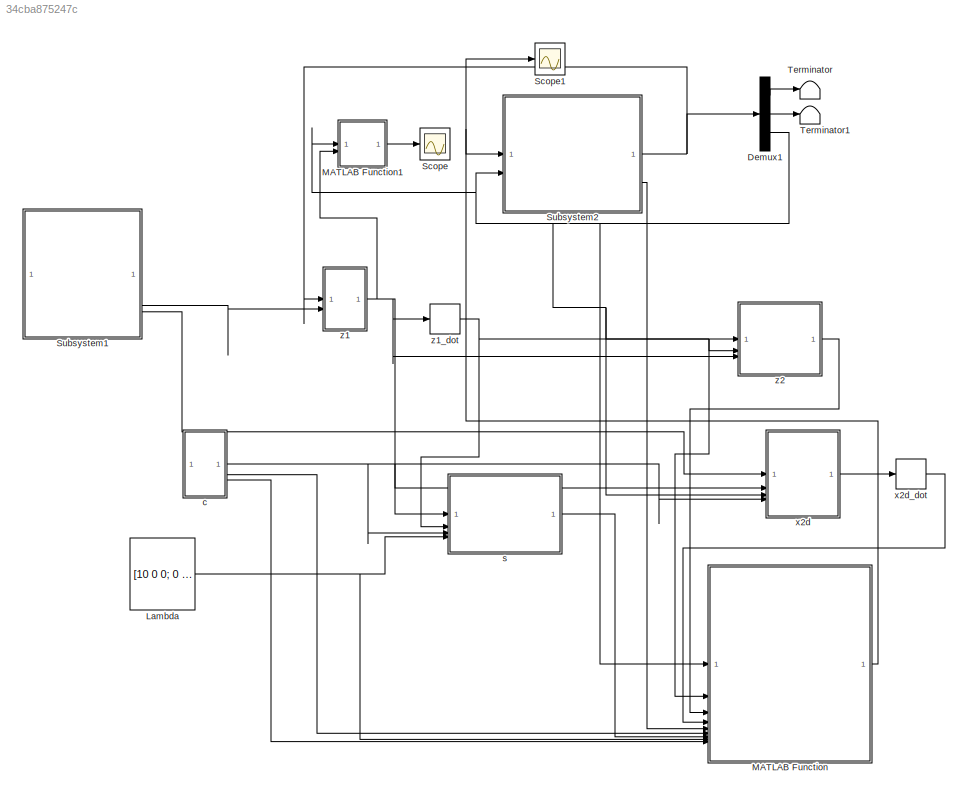
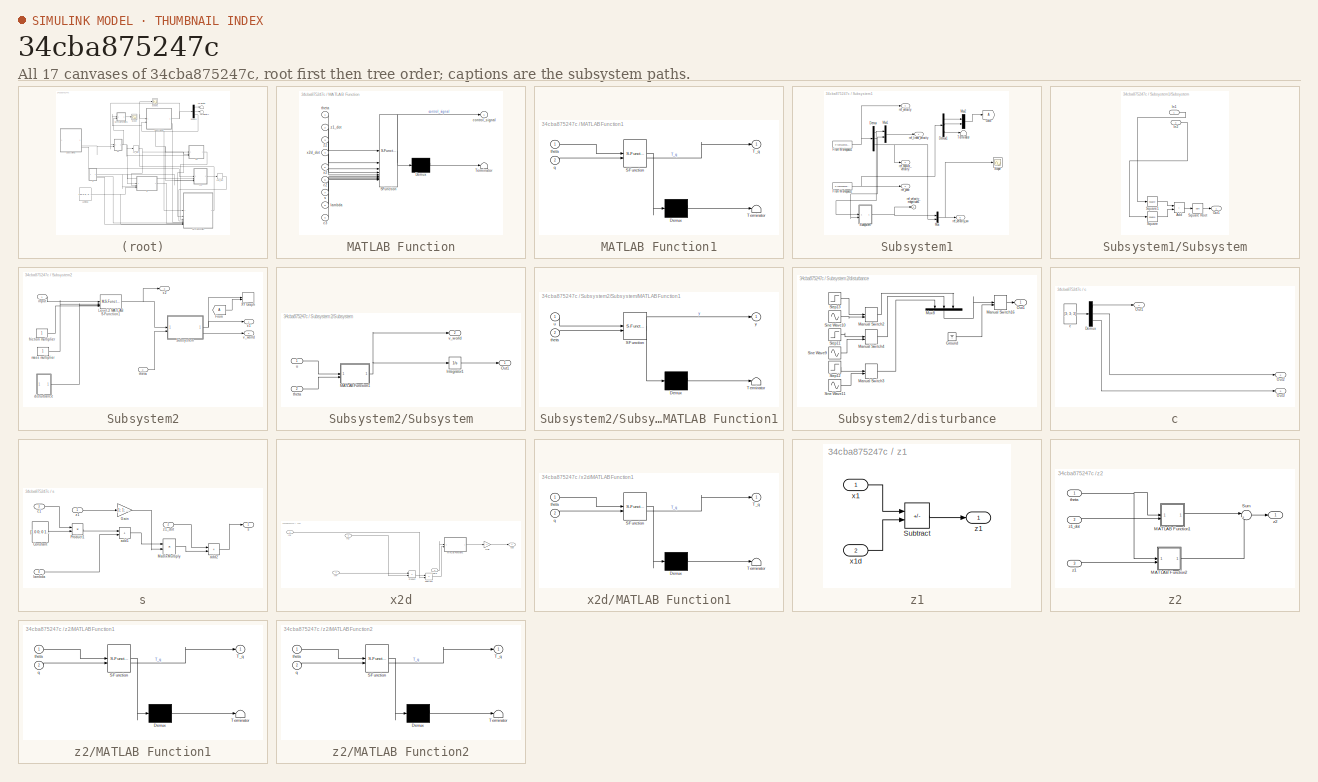
[diagram: thumbnail index - all 17 canvases of the model, root first then tree order]
MODEL slx_34cba875247c
KIND model
CONFIG AbsTol = auto
CONFIG EnableMultiTasking = off
CONFIG FixedStep = auto
CONFIG MaxStep = auto
CONFIG MinStep = auto
CONFIG RelTol = 1e-5
CONFIG SampleTimeConstraint = Unconstrained
CONFIG SolverName = VariableStepAuto
CONFIG StartTime = 0.0
CONFIG StopTime = 100.0
BLOCK [Demux] Demux1
  Outputs = 3
BLOCK [Constant] Lambda
  Value = [10 0 0; 0 20 0 ; 0 0 15]
  VectorParams1D = off
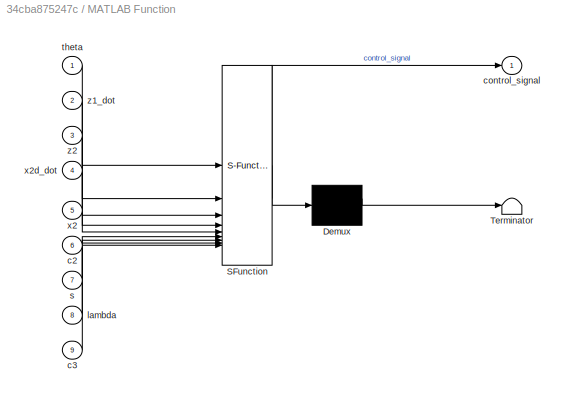
BLOCK [SubSystem] MATLAB Function
  ErrorFcn = Stateflow.Translate.translate
  LibrarySourceBlock = simulink/User-Defined\nFunctions/MATLAB Function
  PermitHierarchicalResolution = ExplicitOnly
  SFBlockType = MATLAB Function
  TreatAsAtomicUnit = on
BLOCK [Demux] MATLAB Function/ Demux 
  Outputs = 1
BLOCK [S-Function] MATLAB Function/ SFunction 
  EnableBusSupport = on
  FunctionName = sf_sfun
  PortCounts = [9 2]
  SFcnIsStateOwnerBlock = off
  SFunctionDeploymentMode = off
  Tag = Stateflow S-Function 6
BLOCK [Terminator] MATLAB Function/ Terminator 
BLOCK [Inport] MATLAB Function/c2
  Port = 6
BLOCK [Inport] MATLAB Function/c3
  Port = 9
BLOCK [Outport] MATLAB Function/control_signal
BLOCK [Inport] MATLAB Function/lambda
  Port = 8
BLOCK [Inport] MATLAB Function/s
  Port = 7
BLOCK [Inport] MATLAB Function/theta
BLOCK [Inport] MATLAB Function/x2
  Port = 5
BLOCK [Inport] MATLAB Function/x2d_dot
  Port = 4
BLOCK [Inport] MATLAB Function/z1_dot
  Port = 2
BLOCK [Inport] MATLAB Function/z2
  Port = 3
BLOCK [SubSystem] MATLAB Function1
  ErrorFcn = Stateflow.Translate.translate
  PermitHierarchicalResolution = ExplicitOnly
  SFBlockType = MATLAB Function
  TreatAsAtomicUnit = on
BLOCK [Demux] MATLAB Function1/ Demux 
  Outputs = 1
BLOCK [S-Function] MATLAB Function1/ SFunction 
  EnableBusSupport = on
  FunctionName = sf_sfun
  PortCounts = [2 2]
  SFcnIsStateOwnerBlock = off
  SFunctionDeploymentMode = off
  Tag = Stateflow S-Function 1
BLOCK [Terminator] MATLAB Function1/ Terminator 
BLOCK [Outport] MATLAB Function1/T_q
BLOCK [Inport] MATLAB Function1/q
  Port = 2
BLOCK [Inport] MATLAB Function1/theta
BLOCK [Scope] Scope
  Floating = off
  NumInputPorts = 1
  ScopeSpecificationString = Simulink.scopes.TimeScopeBlockCfg('CurrentConfiguration', extmgr.ConfigurationSet(extmgr.Configuration('Core','General UI',true),extmgr.Configuration('Core','Source UI',true),extmgr.Configuration('Sources','WiredSimulink',true,'DataLoggingVariableName','ScopeData1'),extmgr.Configuration('Visuals','Time Domain',true,'SerializedDisplays',{struct('MinYLimReal','-0.00024','MaxYLimReal','0.00018','YLab...<+1489ch>
BLOCK [Scope] Scope1
  Floating = off
  NumInputPorts = 1
  ScopeSpecificationString = Simulink.scopes.TimeScopeBlockCfg('CurrentConfiguration', extmgr.ConfigurationSet(extmgr.Configuration('Core','General UI',true),extmgr.Configuration('Core','Source UI',true),extmgr.Configuration('Sources','WiredSimulink',true,'DataLoggingVariableName','ScopeData2'),extmgr.Configuration('Visuals','Time Domain',true,'SerializedDisplays',{struct('MinYLimReal','-4.67014','MaxYLimReal','3.31021','YLab...<+1506ch>
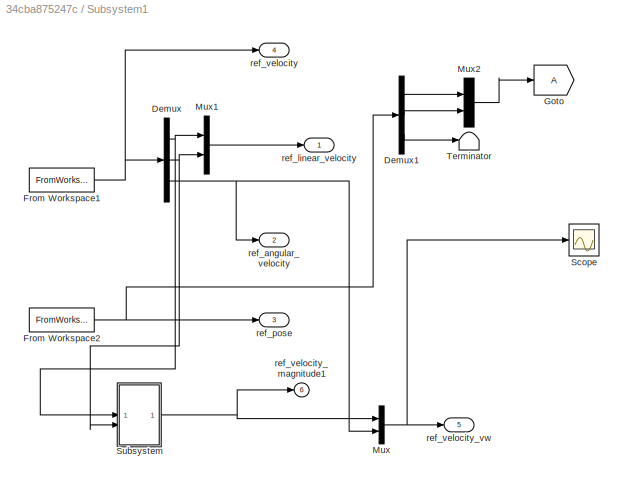
BLOCK [SubSystem] Subsystem1
BLOCK [Demux] Subsystem1/Demux
  Outputs = 3
BLOCK [Demux] Subsystem1/Demux1
  Outputs = 3
BLOCK [FromWorkspace] Subsystem1/From Workspace1
  OutputAfterFinalValue = Setting to zero
  VariableName = sim_velocity
BLOCK [FromWorkspace] Subsystem1/From Workspace2
  OutputAfterFinalValue = Setting to zero
  VariableName = sim_pose
BLOCK [Goto] Subsystem1/Goto
  TagVisibility = global
BLOCK [Mux] Subsystem1/Mux
  DisplayOption = bar
  Inputs = 2
BLOCK [Mux] Subsystem1/Mux1
  DisplayOption = bar
  Inputs = 2
BLOCK [Mux] Subsystem1/Mux2
  DisplayOption = bar
  Inputs = 2
BLOCK [Scope] Subsystem1/Scope
  Floating = off
  NumInputPorts = 1
  ScopeSpecificationString = Simulink.scopes.TimeScopeBlockCfg('CurrentConfiguration', extmgr.ConfigurationSet(extmgr.Configuration('Core','General UI',true),extmgr.Configuration('Core','Source UI',true),extmgr.Configuration('Sources','WiredSimulink',true,'DataLoggingVariableName','ScopeData3'),extmgr.Configuration('Visuals','Time Domain',true,'SerializedDisplays',{struct('MinYLimReal','-1.32526','MaxYLimReal','1.32527','YLab...<+1429ch>
BLOCK [SubSystem] Subsystem1/Subsystem
BLOCK [Sum] Subsystem1/Subsystem/Add
  IconShape = rectangular
BLOCK [Inport] Subsystem1/Subsystem/In1
BLOCK [Inport] Subsystem1/Subsystem/In2
  Port = 2
BLOCK [Outport] Subsystem1/Subsystem/Out1
BLOCK [Math] Subsystem1/Subsystem/Square
  Operator = square
BLOCK [Sqrt] Subsystem1/Subsystem/Square Root
BLOCK [Math] Subsystem1/Subsystem/Square1
  Operator = square
BLOCK [Terminator] Subsystem1/Terminator
BLOCK [Outport] Subsystem1/ref_angular_velocity
  Port = 2
BLOCK [Outport] Subsystem1/ref_linear_velocity
BLOCK [Outport] Subsystem1/ref_pose
  Port = 3
BLOCK [Outport] Subsystem1/ref_velocity
  Port = 4
BLOCK [Outport] Subsystem1/ref_velocity_magnitude1
  Port = 6
BLOCK [Outport] Subsystem1/ref_velocity_vw
  Port = 5
BLOCK [SubSystem] Subsystem2
BLOCK [From] Subsystem2/From
  TagVisibility = global
BLOCK [M-S-Function] Subsystem2/Level-2 MATLAB S-Function1
  FunctionName = model_1_c
BLOCK [SubSystem] Subsystem2/Subsystem
BLOCK [Integrator] Subsystem2/Subsystem/Integrator1
  InitialCondition = [0;0;0]
BLOCK [SubSystem] Subsystem2/Subsystem/MATLAB Function1
  ErrorFcn = Stateflow.Translate.translate
  LibrarySourceBlock = simulink/User-Defined\nFunctions/MATLAB Function
  PermitHierarchicalResolution = ExplicitOnly
  SFBlockType = MATLAB Function
  TreatAsAtomicUnit = on
BLOCK [Demux] Subsystem2/Subsystem/MATLAB Function1/ Demux 
  Outputs = 1
BLOCK [S-Function] Subsystem2/Subsystem/MATLAB Function1/ SFunction 
  EnableBusSupport = on
  FunctionName = sf_sfun
  PortCounts = [2 2]
  SFcnIsStateOwnerBlock = off
  SFunctionDeploymentMode = off
  Tag = Stateflow S-Function 7
BLOCK [Terminator] Subsystem2/Subsystem/MATLAB Function1/ Terminator 
BLOCK [Inport] Subsystem2/Subsystem/MATLAB Function1/theta
  Port = 2
BLOCK [Inport] Subsystem2/Subsystem/MATLAB Function1/u
BLOCK [Outport] Subsystem2/Subsystem/MATLAB Function1/y
BLOCK [Outport] Subsystem2/Subsystem/Out1
BLOCK [Inport] Subsystem2/Subsystem/theta
  Port = 2
BLOCK [Inport] Subsystem2/Subsystem/u
BLOCK [Outport] Subsystem2/Subsystem/v_world
  Port = 2
BLOCK [Record] Subsystem2/XY Graph
  CompatibilityTag = XY
  FileSettingsInternal = {"entries":[{"content":{"excelSettings":{"content":{},"type":"Streamout.ExcelSettings"}},"type":"Streamout.FileSettingStorage","uuid":"ee74998f-52cb-4860-92a7-c3e8b4709b8f"}],"packageUris":["http://schema.mathworks.com/mf0/streamout_blocks/R2020a"],"version":"1.0"}
  Layout = [1 1]
  SignalsInternal = {"entries":[{"content":{"signals":[{"content":{"blockPath":["ref_controller/Subsystem2/XY Graph"],"channel":[],"dimensions":[3,1],"domain":"ref_controller/Subsystem2/XY Graph","hasChildren":true,"lineColor":"#4dbeee","plots":[],"port":1,"sid":[""],"signalID":23782,"signalName":"Subsystem:1"},"type":"RecordBlkView.Signal","uuid":"6d530b1b-06f5-4b68-9082-3b34886d0198"},{"content":{"blockPath":["ref_...<+2134ch>
  VisualizationBindings = {"xyplotplugin":{"info":[{"series":[{"bindingParametersList":[{"parameter":"X-Axis","signalID":23783,"signalName":"Subsystem:1(1,1)"},{"parameter":"Y-Axis","signalID":23792,"signalName":"Subsystem:1(2,1)"}],"seriesID":718},{"bindingParametersList":[{"parameter":"X-Axis","signalID":23788,"signalName":"From(1)"},{"parameter":"Y-Axis","signalID":23794,"signalName":"From(2)"}],"seriesID":954}],"subplo...<+10ch>
BLOCK [SubSystem] Subsystem2/disturbance
BLOCK [Ground] Subsystem2/disturbance/Ground
BLOCK [ManualSwitch] Subsystem2/disturbance/Manual Switch16
  CurrentSetting = 0
BLOCK [ManualSwitch] Subsystem2/disturbance/Manual Switch2
BLOCK [ManualSwitch] Subsystem2/disturbance/Manual Switch3
  CurrentSetting = 0
BLOCK [ManualSwitch] Subsystem2/disturbance/Manual Switch4
  CurrentSetting = 0
BLOCK [Mux] Subsystem2/disturbance/Mux8
  DisplayOption = bar
  Inputs = 3
  NameLocation = left
BLOCK [Outport] Subsystem2/disturbance/Out1
BLOCK [Sin] Subsystem2/disturbance/Sine Wave10
  Amplitude = 2
  Frequency = 2
  Phase = 3
  SampleTime = 0
BLOCK [Sin] Subsystem2/disturbance/Sine Wave11
  Frequency = 2
  Phase = 1
  SampleTime = 0
BLOCK [Sin] Subsystem2/disturbance/Sine Wave9
  Frequency = 2
  Phase = 2
  SampleTime = 0
BLOCK [Step] Subsystem2/disturbance/Step11
  SampleTime = 0
  Time = 8
BLOCK [Step] Subsystem2/disturbance/Step12
  SampleTime = 0
  Time = 5
BLOCK [Step] Subsystem2/disturbance/Step13
  SampleTime = 0
  Time = 13
BLOCK [Constant] Subsystem2/friction multiplier
  VectorParams1D = off
BLOCK [Inport] Subsystem2/input
BLOCK [Constant] Subsystem2/mass multiplier
  VectorParams1D = off
BLOCK [Inport] Subsystem2/theta
  Port = 2
BLOCK [Outport] Subsystem2/v_world
  Port = 2
BLOCK [Outport] Subsystem2/x1
BLOCK [Outport] Subsystem2/x2
  Port = 3
BLOCK [Terminator] Terminator
BLOCK [Terminator] Terminator1
BLOCK [SubSystem] c
BLOCK [Demux] c/Demux
  Outputs = 3
BLOCK [Outport] c/Out1
BLOCK [Outport] c/Out2
  Port = 2
BLOCK [Outport] c/Out3
  Port = 3
BLOCK [Constant] c/c
  Value = [3; 3; 3]
  VectorParams1D = off
BLOCK [SubSystem] s
BLOCK [Constant] s/Constant
  Value = [1 0 0; 0 1 0 ; 0 0 1]
  VectorParams1D = off
BLOCK [Gain] s/Gain
  Gain = [1; 1; 1]
BLOCK [Product] s/MatrixMultiply
  Multiplication = Matrix(*)
BLOCK [Product] s/Product1
BLOCK [Sum] s/add1
  IconShape = rectangular
BLOCK [Sum] s/add2
  IconShape = rectangular
BLOCK [Inport] s/c1
  Port = 3
BLOCK [Inport] s/lambda
  Port = 4
BLOCK [Outport] s/s
BLOCK [Inport] s/z1
BLOCK [Inport] s/z1_dot
  Port = 2
BLOCK [SubSystem] x2d
BLOCK [Gain] x2d/Gain
  Gain = -1
BLOCK [Inport] x2d/In1
BLOCK [Inport] x2d/In2
  Port = 2
BLOCK [Inport] x2d/In4
  Port = 4
BLOCK [SubSystem] x2d/MATLAB Function1
  ErrorFcn = Stateflow.Translate.translate
  PermitHierarchicalResolution = ExplicitOnly
  SFBlockType = MATLAB Function
  TreatAsAtomicUnit = on
BLOCK [Demux] x2d/MATLAB Function1/ Demux 
  Outputs = 1
BLOCK [S-Function] x2d/MATLAB Function1/ SFunction 
  EnableBusSupport = on
  FunctionName = sf_sfun
  PortCounts = [2 2]
  SFcnIsStateOwnerBlock = off
  SFunctionDeploymentMode = off
  Tag = Stateflow S-Function 5
BLOCK [Terminator] x2d/MATLAB Function1/ Terminator 
BLOCK [Outport] x2d/MATLAB Function1/T_q
BLOCK [Inport] x2d/MATLAB Function1/q
  Port = 2
BLOCK [Inport] x2d/MATLAB Function1/theta
BLOCK [Product] x2d/Product
BLOCK [Sum] x2d/Subtract
  IconShape = rectangular
  Inputs = +-
BLOCK [Inport] x2d/theta
  Port = 3
BLOCK [Outport] x2d/x2d
BLOCK [Derivative] x2d_dot
BLOCK [SubSystem] z1
BLOCK [Sum] z1/Subtract
  IconShape = rectangular
  Inputs = +-
BLOCK [Inport] z1/x1
BLOCK [Inport] z1/x1d
  Port = 2
BLOCK [Outport] z1/z1
BLOCK [Derivative] z1_dot
BLOCK [SubSystem] z2
BLOCK [SubSystem] z2/MATLAB Function1
  ErrorFcn = Stateflow.Translate.translate
  PermitHierarchicalResolution = ExplicitOnly
  SFBlockType = MATLAB Function
  TreatAsAtomicUnit = on
BLOCK [Demux] z2/MATLAB Function1/ Demux 
  Outputs = 1
BLOCK [S-Function] z2/MATLAB Function1/ SFunction 
  EnableBusSupport = on
  FunctionName = sf_sfun
  PortCounts = [2 2]
  SFcnIsStateOwnerBlock = off
  SFunctionDeploymentMode = off
  Tag = Stateflow S-Function 3
BLOCK [Terminator] z2/MATLAB Function1/ Terminator 
BLOCK [Outport] z2/MATLAB Function1/T_q
BLOCK [Inport] z2/MATLAB Function1/q
  Port = 2
BLOCK [Inport] z2/MATLAB Function1/theta
BLOCK [SubSystem] z2/MATLAB Function2
  ErrorFcn = Stateflow.Translate.translate
  PermitHierarchicalResolution = ExplicitOnly
  SFBlockType = MATLAB Function
  TreatAsAtomicUnit = on
BLOCK [Demux] z2/MATLAB Function2/ Demux 
  Outputs = 1
BLOCK [S-Function] z2/MATLAB Function2/ SFunction 
  EnableBusSupport = on
  FunctionName = sf_sfun
  PortCounts = [2 2]
  SFcnIsStateOwnerBlock = off
  SFunctionDeploymentMode = off
  Tag = Stateflow S-Function 4
BLOCK [Terminator] z2/MATLAB Function2/ Terminator 
BLOCK [Outport] z2/MATLAB Function2/T_q
BLOCK [Inport] z2/MATLAB Function2/q
  Port = 2
BLOCK [Inport] z2/MATLAB Function2/theta
BLOCK [Sum] z2/Sum
  Inputs = |++
BLOCK [Inport] z2/theta
BLOCK [Inport] z2/z1
  Port = 3
BLOCK [Inport] z2/z1_dot
  Port = 2
BLOCK [Outport] z2/z2
LINE Demux1:1 -> Terminator:1
LINE Demux1:2 -> Terminator1:1
NET Demux1:3 -> MATLAB Function1:1, MATLAB Function:1, Subsystem2:2, x2d:3, z2:1
NET Lambda:1 -> MATLAB Function:8, s:4
LINE MATLAB Function1:1 -> Scope:1
NET MATLAB Function:1 -> Scope1:1, Subsystem2:1
LINE Subsystem1/Demux1:1 -> Subsystem1/Mux2:1
LINE Subsystem1/Demux1:2 -> Subsystem1/Mux2:2
LINE Subsystem1/Demux1:3 -> Subsystem1/Terminator:1
NET Subsystem1/Demux:1 -> Subsystem1/Mux1:1, Subsystem1/Subsystem:1
NET Subsystem1/Demux:2 -> Subsystem1/Mux1:2, Subsystem1/Subsystem:2
NET Subsystem1/Demux:3 -> Subsystem1/Mux:2, Subsystem1/ref_angular_velocity:1
NET Subsystem1/From Workspace1:1 -> Subsystem1/Demux:1, Subsystem1/ref_velocity:1
NET Subsystem1/From Workspace2:1 -> Subsystem1/Demux1:1, Subsystem1/ref_pose:1
LINE Subsystem1/Mux1:1 -> Subsystem1/ref_linear_velocity:1
LINE Subsystem1/Mux2:1 -> Subsystem1/Goto:1
NET Subsystem1/Mux:1 -> Subsystem1/Scope:1, Subsystem1/ref_velocity_vw:1
LINE Subsystem1/Subsystem/Add:1 -> Subsystem1/Subsystem/Square Root:1
LINE Subsystem1/Subsystem/In1:1 -> Subsystem1/Subsystem/Square1:1
LINE Subsystem1/Subsystem/In2:1 -> Subsystem1/Subsystem/Square:1
LINE Subsystem1/Subsystem/Square Root:1 -> Subsystem1/Subsystem/Out1:1
LINE Subsystem1/Subsystem/Square1:1 -> Subsystem1/Subsystem/Add:1
LINE Subsystem1/Subsystem/Square:1 -> Subsystem1/Subsystem/Add:2
NET Subsystem1/Subsystem:1 -> Subsystem1/Mux:1, Subsystem1/ref_velocity_magnitude1:1
LINE Subsystem1:3 -> z1:2
LINE Subsystem1:4 -> x2d:1
LINE Subsystem2/From:1 -> Subsystem2/XY Graph:2
NET Subsystem2/Level-2 MATLAB S-Function1:1 -> Subsystem2/Subsystem:1, Subsystem2/x2:1
LINE Subsystem2/Subsystem/Integrator1:1 -> Subsystem2/Subsystem/Out1:1
NET Subsystem2/Subsystem/MATLAB Function1:1 -> Subsystem2/Subsystem/Integrator1:1, Subsystem2/Subsystem/v_world:1
LINE Subsystem2/Subsystem/theta:1 -> Subsystem2/Subsystem/MATLAB Function1:2
LINE Subsystem2/Subsystem/u:1 -> Subsystem2/Subsystem/MATLAB Function1:1
NET Subsystem2/Subsystem:1 -> Subsystem2/XY Graph:1, Subsystem2/x1:1
LINE Subsystem2/Subsystem:2 -> Subsystem2/v_world:1
LINE Subsystem2/disturbance/Ground:1 -> Subsystem2/disturbance/Manual Switch16:2
LINE Subsystem2/disturbance/Manual Switch16:1 -> Subsystem2/disturbance/Out1:1
LINE Subsystem2/disturbance/Manual Switch2:1 -> Subsystem2/disturbance/Mux8:3
LINE Subsystem2/disturbance/Manual Switch3:1 -> Subsystem2/disturbance/Mux8:1
LINE Subsystem2/disturbance/Manual Switch4:1 -> Subsystem2/disturbance/Mux8:2
LINE Subsystem2/disturbance/Mux8:1 -> Subsystem2/disturbance/Manual Switch16:1
LINE Subsystem2/disturbance/Sine Wave10:1 -> Subsystem2/disturbance/Manual Switch2:2
LINE Subsystem2/disturbance/Sine Wave11:1 -> Subsystem2/disturbance/Manual Switch3:2
LINE Subsystem2/disturbance/Sine Wave9:1 -> Subsystem2/disturbance/Manual Switch4:2
LINE Subsystem2/disturbance/Step11:1 -> Subsystem2/disturbance/Manual Switch4:1
LINE Subsystem2/disturbance/Step12:1 -> Subsystem2/disturbance/Manual Switch3:1
LINE Subsystem2/disturbance/Step13:1 -> Subsystem2/disturbance/Manual Switch2:1
LINE Subsystem2/disturbance:1 -> Subsystem2/Level-2 MATLAB S-Function1:3
LINE Subsystem2/friction multiplier:1 -> Subsystem2/Level-2 MATLAB S-Function1:4
LINE Subsystem2/input:1 -> Subsystem2/Level-2 MATLAB S-Function1:1
LINE Subsystem2/mass multiplier:1 -> Subsystem2/Level-2 MATLAB S-Function1:2
LINE Subsystem2/theta:1 -> Subsystem2/Subsystem:2
NET Subsystem2:1 -> Demux1:1, z1:1
LINE Subsystem2:3 -> MATLAB Function:5
LINE c/Demux:1 -> c/Out1:1
LINE c/Demux:2 -> c/Out2:1
LINE c/Demux:3 -> c/Out3:1
LINE c/c:1 -> c/Demux:1
NET c:1 -> s:3, x2d:4
LINE c:2 -> MATLAB Function:6
LINE c:3 -> MATLAB Function:9
LINE s/Constant:1 -> s/Product1:2
LINE s/Gain:1 -> s/MatrixMultiply:2
LINE s/MatrixMultiply:1 -> s/add2:2
LINE s/Product1:1 -> s/add1:1
LINE s/add1:1 -> s/MatrixMultiply:1
LINE s/add2:1 -> s/s:1
LINE s/c1:1 -> s/Product1:1
LINE s/lambda:1 -> s/add1:2
LINE s/z1:1 -> s/Gain:1
LINE s/z1_dot:1 -> s/add2:1
LINE s:1 -> MATLAB Function:7
LINE x2d/Gain:1 -> x2d/x2d:1
LINE x2d/In1:1 -> x2d/Subtract:2
LINE x2d/In2:1 -> x2d/Product:2
LINE x2d/In4:1 -> x2d/Product:1
LINE x2d/MATLAB Function1:1 -> x2d/Gain:1
LINE x2d/Product:1 -> x2d/Subtract:1
LINE x2d/Subtract:1 -> x2d/MATLAB Function1:2
LINE x2d/theta:1 -> x2d/MATLAB Function1:1
LINE x2d:1 -> x2d_dot:1
LINE x2d_dot:1 -> MATLAB Function:4
LINE z1/Subtract:1 -> z1/z1:1
LINE z1/x1:1 -> z1/Subtract:1
LINE z1/x1d:1 -> z1/Subtract:2
NET z1:1 -> MATLAB Function1:2, s:1, x2d:2, z1_dot:1, z2:3
NET z1_dot:1 -> MATLAB Function:2, s:2, z2:2
LINE z2/MATLAB Function1:1 -> z2/Sum:1
LINE z2/MATLAB Function2:1 -> z2/Sum:2
LINE z2/Sum:1 -> z2/z2:1
NET z2/theta:1 -> z2/MATLAB Function1:1, z2/MATLAB Function2:1
LINE z2/z1:1 -> z2/MATLAB Function2:2
LINE z2/z1_dot:1 -> z2/MATLAB Function1:2
LINE z2:1 -> MATLAB Function:3
note: NET lines group one-source signal fan-out (src -> all destinations, sorted); 1:1 wires keep LINE
CHART MATLAB Function1 states=1 transitions=1
  STATE_LABEL 'eML_blk_kernel()'
  STATE_LABEL 'SCRIPT:\nfunction T_q = Transform_to_Robot(theta,q)\n\n\nq_robot_rotation = [cos(theta) sin(theta) 0\n                   -sin(theta) cos(theta) 0\n                      0           0       1];\n        \nT_q = q_robot_rotation * q;\n'  <repeated x4 — deduplicated; at blocks: MATLAB Function1, MATLAB Function2>
CHART z2/MATLAB Function1 states=1 transitions=1
  STATE_LABEL 'eML_blk_kernel()'
CHART z2/MATLAB Function2 states=1 transitions=1
  STATE_LABEL 'eML_blk_kernel()'
CHART x2d/MATLAB Function1 states=1 transitions=1
  STATE_LABEL 'eML_blk_kernel()'
CHART MATLAB Function states=1 transitions=1
  STATE_LABEL 'eML_blk_kernel()'
  STATE_LABEL 'SCRIPT:\nfunction control_signal = controller(theta,z1_dot,z2,x2d_dot,x2,c2,s,lambda,c3)\n%function control_signal = controller(theta,z1_dot,z2,x2d_dot,x2,c2,s,c3)\npersistent flag;\n\n \n    %lambda = blkdiag(10,20,15);\n\n\nBpinv =  [     0    0.3628    0.0217\n   -0.2857   -0.0000    0.0276\n         0   -0.3628    0.0217\n    0.2857    0.0000    0.0276];\n\nC = [78.7605         0         0\n         0   49.8...<+567ch>'
CHART Subsystem2/Subsystem/MATLAB Function1 states=1 transitions=1
  STATE_LABEL 'eML_blk_kernel()'
  STATE_LABEL 'SCRIPT:\nfunction y = Rot(u,theta)\ny = [ cos(theta) -sin(theta) 0; \n      sin(theta) cos(theta) 0;\n       0 0 1] * u;\n'
CHART  states=0 transitions=0
CHART  states=0 transitions=0
CHART  states=0 transitions=0
CHART  states=0 transitions=0
CHART  states=0 transitions=0
CHART  states=0 transitions=0
